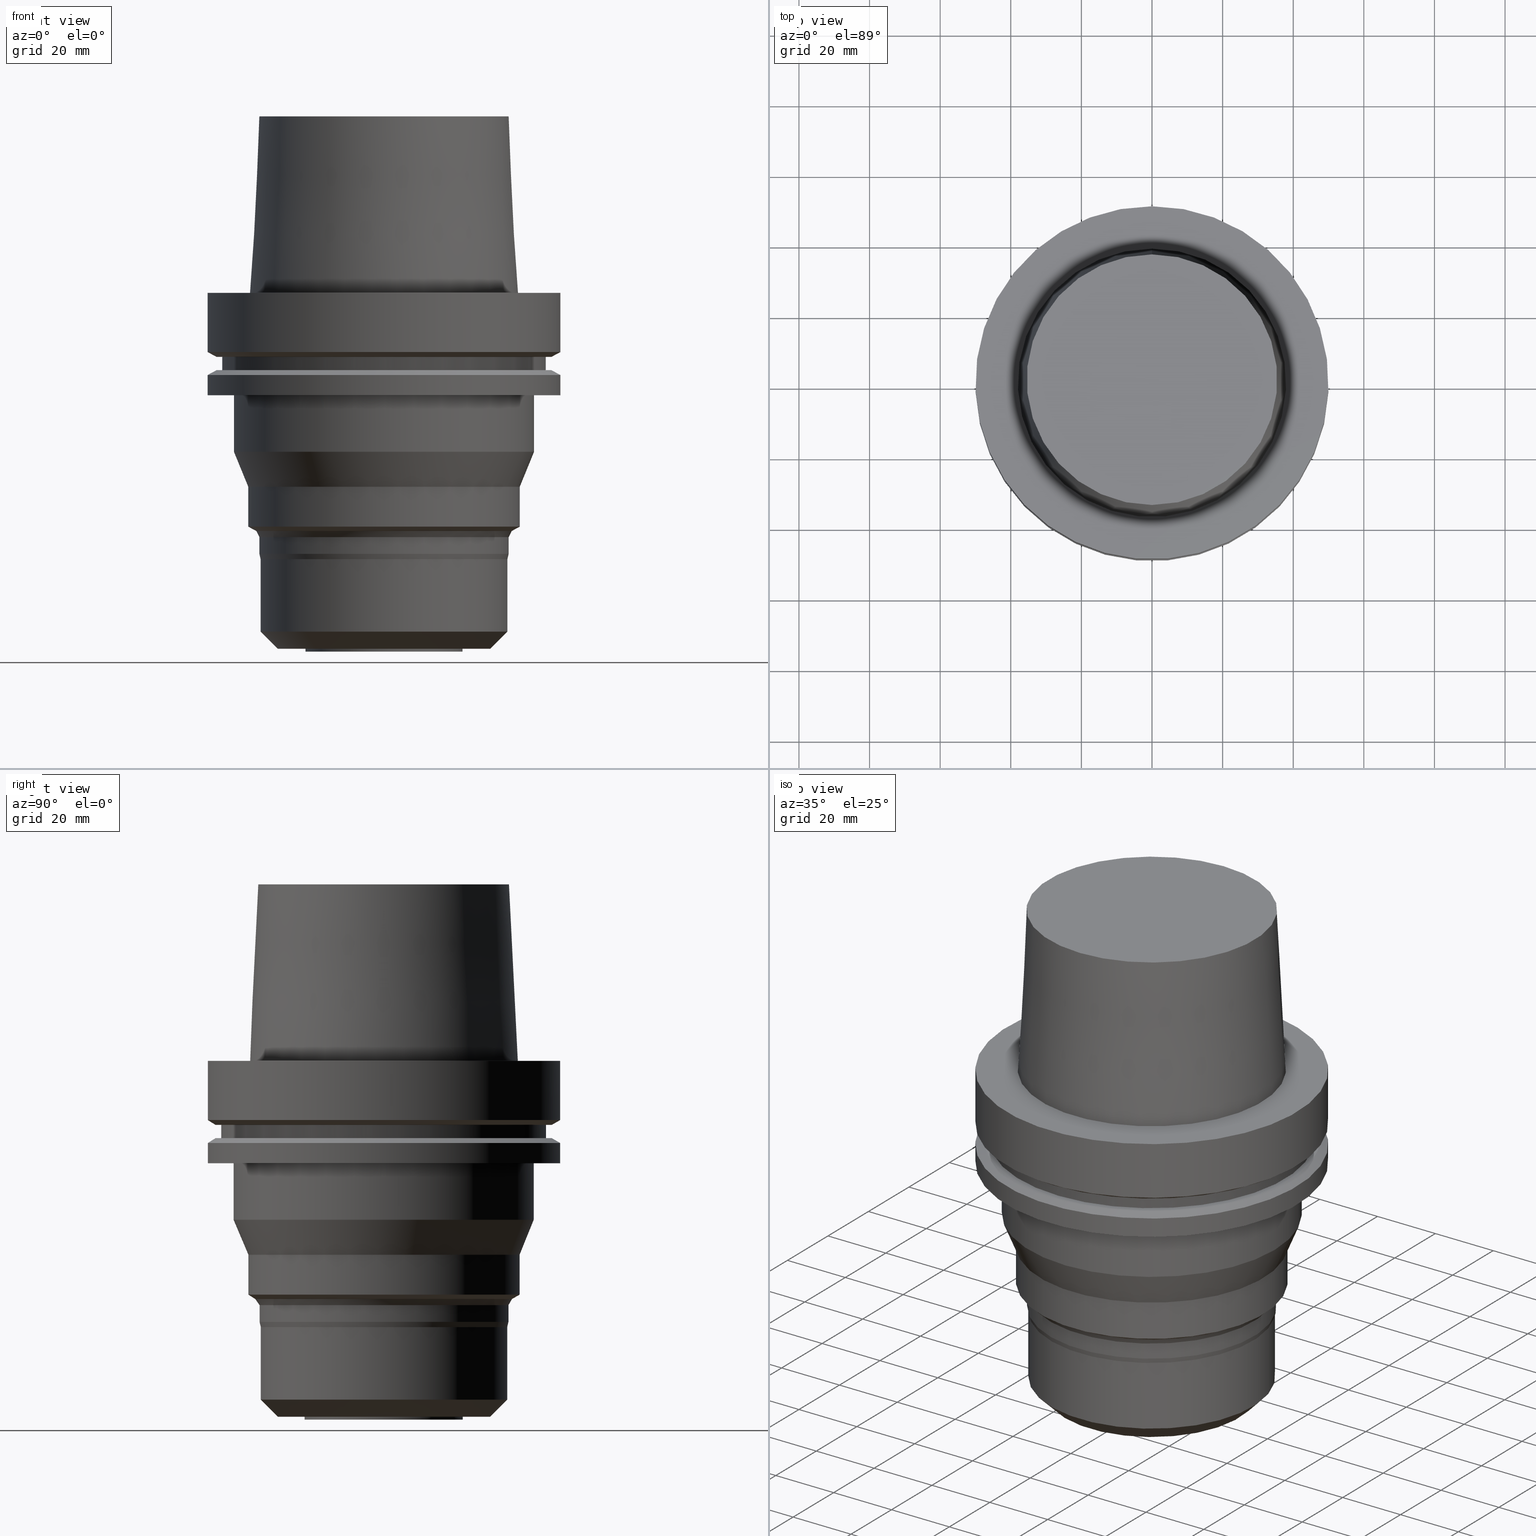
[diagram: canonical four-view strip — front | top / right | iso, engineering-drawing reading convention]
A machine part, canonical four-view strip (front | top / right | iso — engineering-drawing reading convention). The complete STEP part file that produces these views, byte-faithful:
ISO-10303-21;
HEADER;
FILE_DESCRIPTION((''),'1');
FILE_NAME('V:/90_\X2\53D65F9730C730FC30BF\X0\/00_\X2\6DE18DEF30C730FC30BF\X0\/ALL/HSK-BKUS\X2\52A05DE556F3\X0\_201801/HSK-A100-MEGADPG/HSK-A100-MEGA1.000DPG-4.stp','2018-02-01T05:06:17',(''),(''),'Spatial Interop R21 SP3','Kubotek KeyCreator 2011 V10.0.2 (22737)',' ');
FILE_SCHEMA(('automotive_design'));
ENDSEC;
DATA;
#1=MECHANICAL_DESIGN_GEOMETRIC_PRESENTATION_REPRESENTATION(' ',(#10,#11,#12,#13,#14,#15,#16,#17,#18,#19,#20,#21,#22,#23,#24,#25,#26,#27,#28,#29,#30,#31,#32,#33,#34,#35,#36,#37,#38,#39,#40,#41,#42,#43,#44,#45,#46,#47,#48,#49,#50,#51,#52,#53,#54,#55),#6);
#2=PRODUCT_DEFINITION_CONTEXT('',#56,'design');
#3=APPLICATION_PROTOCOL_DEFINITION('INTERNATIONAL STANDARD','automotive_design',1994,#56);
#4=PRODUCT_CATEGORY_RELATIONSHIP('NONE','NONE',#57,#58);
#5=SHAPE_DEFINITION_REPRESENTATION(#59,#60);
#6= (GEOMETRIC_REPRESENTATION_CONTEXT(3)GLOBAL_UNCERTAINTY_ASSIGNED_CONTEXT((#63))GLOBAL_UNIT_ASSIGNED_CONTEXT((#65,#66,#67))REPRESENTATION_CONTEXT('NONE','WORKSPACE'));
#10=STYLED_ITEM('',(#69),#70);
#11=STYLED_ITEM('',(#71,#72),#73);
#12=STYLED_ITEM('',(#74),#75);
#13=STYLED_ITEM('',(#76,#77),#78);
#14=STYLED_ITEM('',(#79),#80);
#15=STYLED_ITEM('',(#81),#82);
#16=STYLED_ITEM('',(#83),#84);
#17=STYLED_ITEM('',(#85),#86);
#18=STYLED_ITEM('',(#87,#88),#89);
#19=STYLED_ITEM('',(#90),#91);
#20=STYLED_ITEM('',(#92,#93),#94);
#21=STYLED_ITEM('',(#95),#96);
#22=STYLED_ITEM('',(#97,#98),#99);
#23=STYLED_ITEM('',(#100,#101),#102);
#24=STYLED_ITEM('',(#103,#104),#105);
#25=STYLED_ITEM('',(#106),#107);
#26=STYLED_ITEM('',(#108),#109);
#27=STYLED_ITEM('',(#110),#111);
#28=STYLED_ITEM('',(#112,#113),#114);
#29=STYLED_ITEM('',(#115,#116),#117);
#30=STYLED_ITEM('',(#118,#119),#120);
#31=STYLED_ITEM('',(#121),#122);
#32=STYLED_ITEM('',(#123),#124);
#33=STYLED_ITEM('',(#125),#126);
#34=STYLED_ITEM('',(#127,#128),#129);
#35=STYLED_ITEM('',(#130),#131);
#36=STYLED_ITEM('',(#132,#133),#134);
#37=STYLED_ITEM('',(#135,#136),#137);
#38=STYLED_ITEM('',(#138,#139),#140);
#39=STYLED_ITEM('',(#141,#142),#143);
#40=STYLED_ITEM('',(#144,#145),#146);
#41=STYLED_ITEM('',(#147),#148);
#42=STYLED_ITEM('',(#149,#150),#151);
#43=STYLED_ITEM('',(#152,#153),#154);
#44=STYLED_ITEM('',(#155,#156),#157);
#45=STYLED_ITEM('',(#158,#159),#160);
#46=STYLED_ITEM('',(#161,#162),#163);
#47=STYLED_ITEM('',(#164),#165);
#48=STYLED_ITEM('',(#166,#167),#168);
#49=STYLED_ITEM('',(#169,#170),#171);
#50=STYLED_ITEM('',(#172,#173),#174);
#51=STYLED_ITEM('',(#175),#176);
#52=STYLED_ITEM('',(#177),#178);
#53=STYLED_ITEM('',(#179),#180);
#54=STYLED_ITEM('',(#181),#182);
#55=STYLED_ITEM('',(#183),#184);
#56=APPLICATION_CONTEXT(' ');
#57=PRODUCT_CATEGORY('part','NONE');
#58=PRODUCT_RELATED_PRODUCT_CATEGORY('detail',' ',(#185));
#59=PRODUCT_DEFINITION_SHAPE('NONE','NONE',#186);
#60=ADVANCED_BREP_SHAPE_REPRESENTATION('Unnamed[1]',(#168,#187),#6);
#63=UNCERTAINTY_MEASURE_WITH_UNIT(LENGTH_MEASURE(1.0E-006),#65,'','');
#65= (CONVERSION_BASED_UNIT('MILLIMETRE',#190)LENGTH_UNIT()NAMED_UNIT(#193));
#66= (NAMED_UNIT(#195)PLANE_ANGLE_UNIT()SI_UNIT($,.RADIAN.));
#67= (NAMED_UNIT(#195)SOLID_ANGLE_UNIT()SI_UNIT($,.STERADIAN.));
#69=PRESENTATION_STYLE_ASSIGNMENT((#201));
#70=EDGE_CURVE('Unnamed[1]',#202,#202,#203,.T.);
#71=PRESENTATION_STYLE_ASSIGNMENT((#204));
#72=PRESENTATION_STYLE_ASSIGNMENT((#205));
#73=ADVANCED_FACE('Unnamed[1]',(#206,#207),#208,.T.);
#74=PRESENTATION_STYLE_ASSIGNMENT((#209));
#75=EDGE_CURVE('Unnamed[1]',#210,#210,#211,.T.);
#76=PRESENTATION_STYLE_ASSIGNMENT((#212));
#77=PRESENTATION_STYLE_ASSIGNMENT((#213));
#78=ADVANCED_FACE('Unnamed[1]',(#214,#215),#216,.T.);
#79=PRESENTATION_STYLE_ASSIGNMENT((#217));
#80=EDGE_CURVE('Unnamed[1]',#218,#218,#219,.T.);
#81=PRESENTATION_STYLE_ASSIGNMENT((#220));
#82=EDGE_CURVE('Unnamed[1]',#221,#221,#222,.T.);
#83=PRESENTATION_STYLE_ASSIGNMENT((#223));
#84=EDGE_CURVE('Unnamed[1]',#224,#224,#225,.T.);
#85=PRESENTATION_STYLE_ASSIGNMENT((#226));
#86=EDGE_CURVE('Unnamed[1]',#227,#227,#228,.T.);
#87=PRESENTATION_STYLE_ASSIGNMENT((#229));
#88=PRESENTATION_STYLE_ASSIGNMENT((#230));
#89=ADVANCED_FACE('Unnamed[1]',(#231,#232),#233,.T.);
#90=PRESENTATION_STYLE_ASSIGNMENT((#234));
#91=EDGE_CURVE('Unnamed[1]',#235,#235,#236,.T.);
#92=PRESENTATION_STYLE_ASSIGNMENT((#237));
#93=PRESENTATION_STYLE_ASSIGNMENT((#238));
#94=ADVANCED_FACE('Unnamed[1]',(#239),#240,.T.);
#95=PRESENTATION_STYLE_ASSIGNMENT((#241));
#96=EDGE_CURVE('Unnamed[1]',#242,#242,#243,.T.);
#97=PRESENTATION_STYLE_ASSIGNMENT((#244));
#98=PRESENTATION_STYLE_ASSIGNMENT((#245));
#99=ADVANCED_FACE('Unnamed[1]',(#246,#247),#248,.T.);
#100=PRESENTATION_STYLE_ASSIGNMENT((#249));
#101=PRESENTATION_STYLE_ASSIGNMENT((#250));
#102=ADVANCED_FACE('Unnamed[1]',(#251,#252),#253,.T.);
#103=PRESENTATION_STYLE_ASSIGNMENT((#254));
#104=PRESENTATION_STYLE_ASSIGNMENT((#255));
#105=ADVANCED_FACE('Unnamed[1]',(#256,#257),#258,.T.);
#106=PRESENTATION_STYLE_ASSIGNMENT((#259));
#107=EDGE_CURVE('Unnamed[1]',#260,#260,#261,.T.);
#108=PRESENTATION_STYLE_ASSIGNMENT((#262));
#109=EDGE_CURVE('Unnamed[1]',#263,#263,#264,.T.);
#110=PRESENTATION_STYLE_ASSIGNMENT((#265));
#111=EDGE_CURVE('Unnamed[1]',#266,#266,#267,.T.);
#112=PRESENTATION_STYLE_ASSIGNMENT((#268));
#113=PRESENTATION_STYLE_ASSIGNMENT((#269));
#114=ADVANCED_FACE('Unnamed[1]',(#270,#271),#272,.T.);
#115=PRESENTATION_STYLE_ASSIGNMENT((#273));
#116=PRESENTATION_STYLE_ASSIGNMENT((#274));
#117=ADVANCED_FACE('Unnamed[1]',(#275,#276),#277,.T.);
#118=PRESENTATION_STYLE_ASSIGNMENT((#278));
#119=PRESENTATION_STYLE_ASSIGNMENT((#279));
#120=ADVANCED_FACE('Unnamed[1]',(#280,#281),#282,.T.);
#121=PRESENTATION_STYLE_ASSIGNMENT((#283));
#122=EDGE_CURVE('Unnamed[1]',#284,#284,#285,.T.);
#123=PRESENTATION_STYLE_ASSIGNMENT((#286));
#124=EDGE_CURVE('Unnamed[1]',#287,#287,#288,.T.);
#125=PRESENTATION_STYLE_ASSIGNMENT((#289));
#126=EDGE_CURVE('Unnamed[1]',#290,#290,#291,.T.);
#127=PRESENTATION_STYLE_ASSIGNMENT((#292));
#128=PRESENTATION_STYLE_ASSIGNMENT((#293));
#129=ADVANCED_FACE('Unnamed[1]',(#294,#295),#296,.T.);
#130=PRESENTATION_STYLE_ASSIGNMENT((#297));
#131=EDGE_CURVE('Unnamed[1]',#298,#298,#299,.T.);
#132=PRESENTATION_STYLE_ASSIGNMENT((#300));
#133=PRESENTATION_STYLE_ASSIGNMENT((#301));
#134=ADVANCED_FACE('Unnamed[1]',(#302,#303),#304,.T.);
#135=PRESENTATION_STYLE_ASSIGNMENT((#305));
#136=PRESENTATION_STYLE_ASSIGNMENT((#306));
#137=ADVANCED_FACE('Unnamed[1]',(#307,#308),#309,.T.);
#138=PRESENTATION_STYLE_ASSIGNMENT((#310));
#139=PRESENTATION_STYLE_ASSIGNMENT((#311));
#140=ADVANCED_FACE('Unnamed[1]',(#312,#313),#314,.T.);
#141=PRESENTATION_STYLE_ASSIGNMENT((#315));
#142=PRESENTATION_STYLE_ASSIGNMENT((#316));
#143=ADVANCED_FACE('Unnamed[1]',(#317,#318),#319,.T.);
#144=PRESENTATION_STYLE_ASSIGNMENT((#320));
#145=PRESENTATION_STYLE_ASSIGNMENT((#321));
#146=ADVANCED_FACE('Unnamed[1]',(#322),#323,.T.);
#147=PRESENTATION_STYLE_ASSIGNMENT((#324));
#148=EDGE_CURVE('Unnamed[1]',#325,#325,#326,.T.);
#149=PRESENTATION_STYLE_ASSIGNMENT((#327));
#150=PRESENTATION_STYLE_ASSIGNMENT((#328));
#151=ADVANCED_FACE('Unnamed[1]',(#329,#330),#331,.T.);
#152=PRESENTATION_STYLE_ASSIGNMENT((#332));
#153=PRESENTATION_STYLE_ASSIGNMENT((#333));
#154=ADVANCED_FACE('Unnamed[1]',(#334,#335),#336,.T.);
#155=PRESENTATION_STYLE_ASSIGNMENT((#337));
#156=PRESENTATION_STYLE_ASSIGNMENT((#338));
#157=ADVANCED_FACE('Unnamed[1]',(#339,#340),#341,.T.);
#158=PRESENTATION_STYLE_ASSIGNMENT((#342));
#159=PRESENTATION_STYLE_ASSIGNMENT((#343));
#160=ADVANCED_FACE('Unnamed[1]',(#344,#345),#346,.T.);
#161=PRESENTATION_STYLE_ASSIGNMENT((#347));
#162=PRESENTATION_STYLE_ASSIGNMENT((#348));
#163=ADVANCED_FACE('Unnamed[1]',(#349,#350),#351,.T.);
#164=PRESENTATION_STYLE_ASSIGNMENT((#352));
#165=EDGE_CURVE('Unnamed[1]',#353,#353,#354,.T.);
#166=PRESENTATION_STYLE_ASSIGNMENT((#355));
#167=PRESENTATION_STYLE_ASSIGNMENT((#356));
#168=MANIFOLD_SOLID_BREP('Unnamed[1]',#357);
#169=PRESENTATION_STYLE_ASSIGNMENT((#358));
#170=PRESENTATION_STYLE_ASSIGNMENT((#359));
#171=ADVANCED_FACE('Unnamed[1]',(#360,#361),#362,.T.);
#172=PRESENTATION_STYLE_ASSIGNMENT((#363));
#173=PRESENTATION_STYLE_ASSIGNMENT((#364));
#174=ADVANCED_FACE('Unnamed[1]',(#365,#366),#367,.T.);
#175=PRESENTATION_STYLE_ASSIGNMENT((#368));
#176=EDGE_CURVE('Unnamed[1]',#369,#369,#370,.T.);
#177=PRESENTATION_STYLE_ASSIGNMENT((#371));
#178=EDGE_CURVE('Unnamed[1]',#372,#372,#373,.T.);
#179=PRESENTATION_STYLE_ASSIGNMENT((#374));
#180=EDGE_CURVE('Unnamed[1]',#375,#375,#376,.T.);
#181=PRESENTATION_STYLE_ASSIGNMENT((#377));
#182=EDGE_CURVE('Unnamed[1]',#378,#378,#379,.T.);
#183=PRESENTATION_STYLE_ASSIGNMENT((#380));
#184=EDGE_CURVE('Unnamed[1]',#381,#381,#382,.T.);
#185=PRODUCT('Unnamed[1]','Unnamed[1]','PART-Unnamed[1]-DESC',(#383));
#186=PRODUCT_DEFINITION('NONE','NONE',#384,#2);
#187=AXIS2_PLACEMENT_3D('',#385,#386,#387);
#190=LENGTH_MEASURE_WITH_UNIT(LENGTH_MEASURE(1.0),#388);
#193=DIMENSIONAL_EXPONENTS(1.0,0.0,0.0,0.0,0.0,0.0,0.0);
#195=DIMENSIONAL_EXPONENTS(0.0,0.0,0.0,0.0,0.0,0.0,0.0);
#201=CURVE_STYLE('',#389,POSITIVE_LENGTH_MEASURE(1000.0),#390);
#202=VERTEX_POINT('',#391);
#203=CIRCLE('',#392,35.3500001444791);
#204=SURFACE_STYLE_USAGE(.BOTH.,#393);
#205=CURVE_STYLE('',#394,POSITIVE_LENGTH_MEASURE(1000.0),#395);
#206=FACE_BOUND('',#396,.T.);
#207=FACE_BOUND('',#397,.T.);
#208=CONICAL_SURFACE('',#398,36.7499999999998,0.0499583957219389);
#209=CURVE_STYLE('',#399,POSITIVE_LENGTH_MEASURE(1000.0),#400);
#210=VERTEX_POINT('',#401);
#211=CIRCLE('',#402,42.4999999999989);
#212=SURFACE_STYLE_USAGE(.BOTH.,#403);
#213=CURVE_STYLE('',#404,POSITIVE_LENGTH_MEASURE(1000.0),#405);
#214=FACE_BOUND('',#406,.T.);
#215=FACE_BOUND('',#407,.T.);
#216=CONICAL_SURFACE('',#408,40.5000000463458,0.383984623955061);
#217=CURVE_STYLE('',#409,POSITIVE_LENGTH_MEASURE(1000.0),#410);
#218=VERTEX_POINT('',#411);
#219=CIRCLE('',#412,50.0);
#220=CURVE_STYLE('',#413,POSITIVE_LENGTH_MEASURE(1000.0),#414);
#221=VERTEX_POINT('',#415);
#222=CIRCLE('',#416,22.3990211432949);
#223=CURVE_STYLE('',#417,POSITIVE_LENGTH_MEASURE(1000.0),#418);
#224=VERTEX_POINT('',#419);
#225=CIRCLE('',#420,37.9999999999997);
#226=CURVE_STYLE('',#421,POSITIVE_LENGTH_MEASURE(1000.0),#422);
#227=VERTEX_POINT('',#423);
#228=CIRCLE('',#424,46.0000000000001);
#229=SURFACE_STYLE_USAGE(.BOTH.,#425);
#230=CURVE_STYLE('',#426,POSITIVE_LENGTH_MEASURE(1000.0),#427);
#231=FACE_BOUND('',#428,.T.);
#232=FACE_BOUND('',#429,.T.);
#233=CYLINDRICAL_SURFACE('',#430,35.0000001444792);
#234=CURVE_STYLE('',#431,POSITIVE_LENGTH_MEASURE(1000.0),#432);
#235=VERTEX_POINT('',#433);
#236=CIRCLE('',#434,50.0);
#237=SURFACE_STYLE_USAGE(.BOTH.,#435);
#238=CURVE_STYLE('',#436,POSITIVE_LENGTH_MEASURE(1000.0),#437);
#239=FACE_OUTER_BOUND('',#438,.T.);
#240=PLANE('',#439);
#241=CURVE_STYLE('',#440,POSITIVE_LENGTH_MEASURE(1000.0),#441);
#242=VERTEX_POINT('',#442);
#243=CIRCLE('',#443,30.1254031949116);
#244=SURFACE_STYLE_USAGE(.BOTH.,#444);
#245=CURVE_STYLE('',#445,POSITIVE_LENGTH_MEASURE(1000.0),#446);
#246=FACE_BOUND('',#447,.T.);
#247=FACE_BOUND('',#448,.T.);
#248=CYLINDRICAL_SURFACE('',#449,50.0000000000001);
#249=SURFACE_STYLE_USAGE(.BOTH.,#450);
#250=CURVE_STYLE('',#451,POSITIVE_LENGTH_MEASURE(1000.0),#452);
#251=FACE_BOUND('',#453,.T.);
#252=FACE_OUTER_BOUND('',#454,.T.);
#253=PLANE('',#455);
#254=SURFACE_STYLE_USAGE(.BOTH.,#456);
#255=CURVE_STYLE('',#457,POSITIVE_LENGTH_MEASURE(1000.0),#458);
#256=FACE_BOUND('',#459,.T.);
#257=FACE_BOUND('',#460,.T.);
#258=CYLINDRICAL_SURFACE('',#461,22.3990211432949);
#259=CURVE_STYLE('',#462,POSITIVE_LENGTH_MEASURE(1000.0),#463);
#260=VERTEX_POINT('',#464);
#261=CIRCLE('',#465,38.5000000926919);
#262=CURVE_STYLE('',#466,POSITIVE_LENGTH_MEASURE(1000.0),#467);
#263=VERTEX_POINT('',#468);
#264=CIRCLE('',#469,38.5000001503682);
#265=CURVE_STYLE('',#470,POSITIVE_LENGTH_MEASURE(1000.0),#471);
#266=VERTEX_POINT('',#472);
#267=CIRCLE('',#473,42.4999999999997);
#268=SURFACE_STYLE_USAGE(.BOTH.,#474);
#269=CURVE_STYLE('',#475,POSITIVE_LENGTH_MEASURE(1000.0),#476);
#270=FACE_BOUND('',#477,.T.);
#271=FACE_BOUND('',#478,.T.);
#272=CYLINDRICAL_SURFACE('',#479,46.0000000000001);
#273=SURFACE_STYLE_USAGE(.BOTH.,#480);
#274=CURVE_STYLE('',#481,POSITIVE_LENGTH_MEASURE(1000.0),#482);
#275=FACE_BOUND('',#483,.T.);
#276=FACE_BOUND('',#484,.T.);
#277=CONICAL_SURFACE('',#485,32.5627016696954,0.785398163397455);
#278=SURFACE_STYLE_USAGE(.BOTH.,#486);
#279=CURVE_STYLE('',#487,POSITIVE_LENGTH_MEASURE(1000.0),#488);
#280=FACE_BOUND('',#489,.T.);
#281=FACE_OUTER_BOUND('',#490,.T.);
#282=PLANE('',#491);
#283=CURVE_STYLE('',#492,POSITIVE_LENGTH_MEASURE(1000.0),#493);
#284=VERTEX_POINT('',#494);
#285=CIRCLE('',#495,46.0000000000001);
#286=CURVE_STYLE('',#496,POSITIVE_LENGTH_MEASURE(1000.0),#497);
#287=VERTEX_POINT('',#498);
#288=CIRCLE('',#499,35.3500001444791);
#289=CURVE_STYLE('',#500,POSITIVE_LENGTH_MEASURE(1000.0),#501);
#290=VERTEX_POINT('',#502);
#291=CIRCLE('',#503,22.3990211432949);
#292=SURFACE_STYLE_USAGE(.BOTH.,#504);
#293=CURVE_STYLE('',#505,POSITIVE_LENGTH_MEASURE(1000.0),#506);
#294=FACE_BOUND('',#507,.T.);
#295=FACE_BOUND('',#508,.T.);
#296=CONICAL_SURFACE('',#509,48.8112976320959,1.04719755119658);
#297=CURVE_STYLE('',#510,POSITIVE_LENGTH_MEASURE(1000.0),#511);
#298=VERTEX_POINT('',#512);
#299=CIRCLE('',#513,35.0000001444792);
#300=SURFACE_STYLE_USAGE(.BOTH.,#514);
#301=CURVE_STYLE('',#515,POSITIVE_LENGTH_MEASURE(1000.0),#516);
#302=FACE_BOUND('',#517,.T.);
#303=FACE_OUTER_BOUND('',#518,.T.);
#304=PLANE('',#519);
#305=SURFACE_STYLE_USAGE(.BOTH.,#520);
#306=CURVE_STYLE('',#521,POSITIVE_LENGTH_MEASURE(1000.0),#522);
#307=FACE_BOUND('',#523,.T.);
#308=FACE_BOUND('',#524,.T.);
#309=CYLINDRICAL_SURFACE('',#525,42.4999999999993);
#310=SURFACE_STYLE_USAGE(.BOTH.,#526);
#311=CURVE_STYLE('',#527,POSITIVE_LENGTH_MEASURE(1000.0),#528);
#312=FACE_OUTER_BOUND('',#529,.T.);
#313=FACE_BOUND('',#530,.T.);
#314=PLANE('',#531);
#315=SURFACE_STYLE_USAGE(.BOTH.,#532);
#316=CURVE_STYLE('',#533,POSITIVE_LENGTH_MEASURE(1000.0),#534);
#317=FACE_BOUND('',#535,.T.);
#318=FACE_BOUND('',#536,.T.);
#319=CONICAL_SURFACE('',#537,35.850000144479,0.523598775598254);
#320=SURFACE_STYLE_USAGE(.BOTH.,#538);
#321=CURVE_STYLE('',#539,POSITIVE_LENGTH_MEASURE(1000.0),#540);
#322=FACE_OUTER_BOUND('',#541,.T.);
#323=PLANE('',#542);
#324=CURVE_STYLE('',#543,POSITIVE_LENGTH_MEASURE(1000.0),#544);
#325=VERTEX_POINT('',#545);
#326=CIRCLE('',#546,47.6225952641917);
#327=SURFACE_STYLE_USAGE(.BOTH.,#547);
#328=CURVE_STYLE('',#548,POSITIVE_LENGTH_MEASURE(1000.0),#549);
#329=FACE_OUTER_BOUND('',#550,.T.);
#330=FACE_BOUND('',#551,.T.);
#331=PLANE('',#552);
#332=SURFACE_STYLE_USAGE(.BOTH.,#553);
#333=CURVE_STYLE('',#554,POSITIVE_LENGTH_MEASURE(1000.0),#555);
#334=FACE_BOUND('',#556,.T.);
#335=FACE_BOUND('',#557,.T.);
#336=CONICAL_SURFACE('',#558,37.4250001474235,1.04719755119651);
#337=SURFACE_STYLE_USAGE(.BOTH.,#559);
#338=CURVE_STYLE('',#560,POSITIVE_LENGTH_MEASURE(1000.0),#561);
#339=FACE_BOUND('',#562,.T.);
#340=FACE_BOUND('',#563,.T.);
#341=CONICAL_SURFACE('',#564,35.1750001444791,0.229231933276896);
#342=SURFACE_STYLE_USAGE(.BOTH.,#565);
#343=CURVE_STYLE('',#566,POSITIVE_LENGTH_MEASURE(1000.0),#567);
#344=FACE_BOUND('',#568,.T.);
#345=FACE_BOUND('',#569,.T.);
#346=CYLINDRICAL_SURFACE('',#570,38.50000012153);
#347=SURFACE_STYLE_USAGE(.BOTH.,#571);
#348=CURVE_STYLE('',#572,POSITIVE_LENGTH_MEASURE(1000.0),#573);
#349=FACE_BOUND('',#574,.T.);
#350=FACE_BOUND('',#575,.T.);
#351=CYLINDRICAL_SURFACE('',#576,35.3500001444791);
#352=CURVE_STYLE('',#577,POSITIVE_LENGTH_MEASURE(1000.0),#578);
#353=VERTEX_POINT('',#579);
#354=CIRCLE('',#580,35.0000001444792);
#355=SURFACE_STYLE_USAGE(.BOTH.,#581);
#356=CURVE_STYLE('',#582,POSITIVE_LENGTH_MEASURE(1000.0),#583);
#357=CLOSED_SHELL('',(#146,#73,#151,#99,#174,#102,#114,#140,#129,#171,#134,#137,#78,#160,#154,#143,#163,#157,#89,#117,#120,#105,#94));
#358=SURFACE_STYLE_USAGE(.BOTH.,#584);
#359=CURVE_STYLE('',#585,POSITIVE_LENGTH_MEASURE(1000.0),#586);
#360=FACE_BOUND('',#587,.T.);
#361=FACE_BOUND('',#588,.T.);
#362=CYLINDRICAL_SURFACE('',#589,50.0);
#363=SURFACE_STYLE_USAGE(.BOTH.,#590);
#364=CURVE_STYLE('',#591,POSITIVE_LENGTH_MEASURE(1000.0),#592);
#365=FACE_BOUND('',#593,.T.);
#366=FACE_BOUND('',#594,.T.);
#367=CONICAL_SURFACE('',#595,48.8112976320959,1.04719755119659);
#368=CURVE_STYLE('',#596,POSITIVE_LENGTH_MEASURE(1000.0),#597);
#369=VERTEX_POINT('',#598);
#370=CIRCLE('',#599,50.0);
#371=CURVE_STYLE('',#600,POSITIVE_LENGTH_MEASURE(1000.0),#601);
#372=VERTEX_POINT('',#602);
#373=CIRCLE('',#603,35.4999999999999);
#374=CURVE_STYLE('',#604,POSITIVE_LENGTH_MEASURE(1000.0),#605);
#375=VERTEX_POINT('',#606);
#376=CIRCLE('',#607,47.6225952641917);
#377=CURVE_STYLE('',#608,POSITIVE_LENGTH_MEASURE(1000.0),#609);
#378=VERTEX_POINT('',#610);
#379=CIRCLE('',#611,36.3500001444789);
#380=CURVE_STYLE('',#612,POSITIVE_LENGTH_MEASURE(1000.0),#613);
#381=VERTEX_POINT('',#614);
#382=CIRCLE('',#615,50.0000000000001);
#383=PRODUCT_CONTEXT('',#56,'mechanical');
#384=PRODUCT_DEFINITION_FORMATION_WITH_SPECIFIED_SOURCE(' ','NONE',#185,.NOT_KNOWN.);
#385=CARTESIAN_POINT('',(0.0,0.0,0.0));
#386=DIRECTION('',(0.0,0.0,1.0));
#387=DIRECTION('',(1.0,0.0,0.0));
#388= (NAMED_UNIT(#193)LENGTH_UNIT()SI_UNIT(.MILLI.,.METRE.));
#389=DRAUGHTING_PRE_DEFINED_CURVE_FONT('continuous');
#390=COLOUR_RGB('',0.0,1.0,0.0);
#391=CARTESIAN_POINT('',(4.23619741221846E-015,35.3500001444791,-69.1823538863266));
#392=AXIS2_PLACEMENT_3D('',#617,#618,#619);
#393=SURFACE_SIDE_STYLE('',(#620));
#394=DRAUGHTING_PRE_DEFINED_CURVE_FONT('continuous');
#395=COLOUR_RGB('',0.0,1.0,0.0);
#396=EDGE_LOOP('',(#621));
#397=EDGE_LOOP('',(#622));
#398=AXIS2_PLACEMENT_3D('',#623,#624,#625);
#399=DRAUGHTING_PRE_DEFINED_CURVE_FONT('continuous');
#400=COLOUR_RGB('',0.0,1.0,0.0);
#401=CARTESIAN_POINT('',(1.77573785876361E-015,42.4999999999989,-28.9999999999991));
#402=AXIS2_PLACEMENT_3D('',#626,#627,#628);
#403=SURFACE_SIDE_STYLE('',(#629));
#404=DRAUGHTING_PRE_DEFINED_CURVE_FONT('continuous');
#405=COLOUR_RGB('',0.0,1.0,0.0);
#406=EDGE_LOOP('',(#630));
#407=EDGE_LOOP('',(#631));
#408=AXIS2_PLACEMENT_3D('',#632,#633,#634);
#409=DRAUGHTING_PRE_DEFINED_CURVE_FONT('continuous');
#410=COLOUR_RGB('',0.0,1.0,0.0);
#411=CARTESIAN_POINT('',(1.42350465640822E-015,50.0,-23.2475952641907));
#412=AXIS2_PLACEMENT_3D('',#635,#636,#637);
#413=DRAUGHTING_PRE_DEFINED_CURVE_FONT('continuous');
#414=COLOUR_RGB('',0.0,1.0,0.0);
#415=CARTESIAN_POINT('',(6.17221986770265E-015,22.399021143295,-100.8));
#416=AXIS2_PLACEMENT_3D('',#638,#639,#640);
#417=DRAUGHTING_PRE_DEFINED_CURVE_FONT('continuous');
#418=COLOUR_RGB('',0.0,1.0,0.0);
#419=CARTESIAN_POINT('',(-4.68386162474972E-031,37.9999999999997,4.6536578367599E-015));
#420=AXIS2_PLACEMENT_3D('',#641,#642,#643);
#421=DRAUGHTING_PRE_DEFINED_CURVE_FONT('continuous');
#422=COLOUR_RGB('',0.0,1.0,0.0);
#423=CARTESIAN_POINT('',(1.33945743656734E-015,46.0,-21.8749999999988));
#424=AXIS2_PLACEMENT_3D('',#644,#645,#646);
#425=SURFACE_SIDE_STYLE('',(#647));
#426=DRAUGHTING_PRE_DEFINED_CURVE_FONT('continuous');
#427=COLOUR_RGB('',0.0,1.0,0.0);
#428=EDGE_LOOP('',(#648));
#429=EDGE_LOOP('',(#649));
#430=AXIS2_PLACEMENT_3D('',#650,#651,#652);
#431=DRAUGHTING_PRE_DEFINED_CURVE_FONT('continuous');
#432=COLOUR_RGB('',0.0,1.0,0.0);
#433=CARTESIAN_POINT('',(1.02578894188643E-015,50.0,-16.7524047358083));
#434=AXIS2_PLACEMENT_3D('',#653,#654,#655);
#435=SURFACE_SIDE_STYLE('',(#656));
#436=DRAUGHTING_PRE_DEFINED_CURVE_FONT('continuous');
#437=COLOUR_RGB('',0.0,1.0,0.0);
#438=EDGE_LOOP('',(#657));
#439=AXIS2_PLACEMENT_3D('',#658,#659,#660);
#440=DRAUGHTING_PRE_DEFINED_CURVE_FONT('continuous');
#441=COLOUR_RGB('',0.0,1.0,0.0);
#442=CARTESIAN_POINT('',(6.17221986770265E-015,30.1254031949117,-100.8));
#443=AXIS2_PLACEMENT_3D('',#661,#662,#663);
#444=SURFACE_SIDE_STYLE('',(#664));
#445=DRAUGHTING_PRE_DEFINED_CURVE_FONT('continuous');
#446=COLOUR_RGB('',0.0,1.0,0.0);
#447=EDGE_LOOP('',(#665));
#448=EDGE_LOOP('',(#666));
#449=AXIS2_PLACEMENT_3D('',#667,#668,#669);
#450=SURFACE_SIDE_STYLE('',(#670));
#451=DRAUGHTING_PRE_DEFINED_CURVE_FONT('continuous');
#452=COLOUR_RGB('',0.0,1.0,0.0);
#453=EDGE_LOOP('',(#671));
#454=EDGE_LOOP('',(#672));
#455=AXIS2_PLACEMENT_3D('',#673,#674,#675);
#456=SURFACE_SIDE_STYLE('',(#676));
#457=DRAUGHTING_PRE_DEFINED_CURVE_FONT('continuous');
#458=COLOUR_RGB('',0.0,1.0,0.0);
#459=EDGE_LOOP('',(#677));
#460=EDGE_LOOP('',(#678));
#461=AXIS2_PLACEMENT_3D('',#679,#680,#681);
#462=DRAUGHTING_PRE_DEFINED_CURVE_FONT('continuous');
#463=COLOUR_RGB('',0.0,1.0,0.0);
#464=CARTESIAN_POINT('',(3.36165544961199E-015,38.5000000926919,-54.899999770587));
#465=AXIS2_PLACEMENT_3D('',#682,#683,#684);
#466=DRAUGHTING_PRE_DEFINED_CURVE_FONT('continuous');
#467=COLOUR_RGB('',0.0,1.0,0.0);
#468=CARTESIAN_POINT('',(4.05413199602915E-015,38.5000001503682,-66.2089999965997));
#469=AXIS2_PLACEMENT_3D('',#685,#686,#687);
#470=DRAUGHTING_PRE_DEFINED_CURVE_FONT('continuous');
#471=COLOUR_RGB('',0.0,1.0,0.0);
#472=CARTESIAN_POINT('',(2.75545529808163E-015,42.4999999999997,-45.0000000000014));
#473=AXIS2_PLACEMENT_3D('',#688,#689,#690);
#474=SURFACE_SIDE_STYLE('',(#691));
#475=DRAUGHTING_PRE_DEFINED_CURVE_FONT('continuous');
#476=COLOUR_RGB('',0.0,1.0,0.0);
#477=EDGE_LOOP('',(#692));
#478=EDGE_LOOP('',(#693));
#479=AXIS2_PLACEMENT_3D('',#694,#695,#696);
#480=SURFACE_SIDE_STYLE('',(#697));
#481=DRAUGHTING_PRE_DEFINED_CURVE_FONT('continuous');
#482=COLOUR_RGB('',0.0,1.0,0.0);
#483=EDGE_LOOP('',(#698));
#484=EDGE_LOOP('',(#699));
#485=AXIS2_PLACEMENT_3D('',#700,#701,#702);
#486=SURFACE_SIDE_STYLE('',(#703));
#487=DRAUGHTING_PRE_DEFINED_CURVE_FONT('continuous');
#488=COLOUR_RGB('',0.0,1.0,0.0);
#489=EDGE_LOOP('',(#704));
#490=EDGE_LOOP('',(#705));
#491=AXIS2_PLACEMENT_3D('',#706,#707,#708);
#492=DRAUGHTING_PRE_DEFINED_CURVE_FONT('continuous');
#493=COLOUR_RGB('',0.0,1.0,0.0);
#494=CARTESIAN_POINT('',(1.10983616172727E-015,46.0,-18.1249999999997));
#495=AXIS2_PLACEMENT_3D('',#709,#710,#711);
#496=DRAUGHTING_PRE_DEFINED_CURVE_FONT('continuous');
#497=COLOUR_RGB('',0.0,1.0,0.0);
#498=CARTESIAN_POINT('',(4.52506992284948E-015,35.3500001444791,-73.9000000000002));
#499=AXIS2_PLACEMENT_3D('',#712,#713,#714);
#500=DRAUGHTING_PRE_DEFINED_CURVE_FONT('continuous');
#501=COLOUR_RGB('',0.0,1.0,0.0);
#502=CARTESIAN_POINT('',(6.22120573966855E-015,22.399021143295,-101.6));
#503=AXIS2_PLACEMENT_3D('',#715,#716,#717);
#504=SURFACE_SIDE_STYLE('',(#718));
#505=DRAUGHTING_PRE_DEFINED_CURVE_FONT('continuous');
#506=COLOUR_RGB('',0.0,1.0,0.0);
#507=EDGE_LOOP('',(#719));
#508=EDGE_LOOP('',(#720));
#509=AXIS2_PLACEMENT_3D('',#721,#722,#723);
#510=DRAUGHTING_PRE_DEFINED_CURVE_FONT('continuous');
#511=COLOUR_RGB('',0.0,1.0,0.0);
#512=CARTESIAN_POINT('',(4.61691843278555E-015,35.0000001444792,-75.4000000000005));
#513=AXIS2_PLACEMENT_3D('',#724,#725,#726);
#514=SURFACE_SIDE_STYLE('',(#727));
#515=DRAUGHTING_PRE_DEFINED_CURVE_FONT('continuous');
#516=COLOUR_RGB('',0.0,1.0,0.0);
#517=EDGE_LOOP('',(#728));
#518=EDGE_LOOP('',(#729));
#519=AXIS2_PLACEMENT_3D('',#730,#731,#732);
#520=SURFACE_SIDE_STYLE('',(#733));
#521=DRAUGHTING_PRE_DEFINED_CURVE_FONT('continuous');
#522=COLOUR_RGB('',0.0,1.0,0.0);
#523=EDGE_LOOP('',(#734));
#524=EDGE_LOOP('',(#735));
#525=AXIS2_PLACEMENT_3D('',#736,#737,#738);
#526=SURFACE_SIDE_STYLE('',(#739));
#527=DRAUGHTING_PRE_DEFINED_CURVE_FONT('continuous');
#528=COLOUR_RGB('',0.0,1.0,0.0);
#529=EDGE_LOOP('',(#740));
#530=EDGE_LOOP('',(#741));
#531=AXIS2_PLACEMENT_3D('',#742,#743,#744);
#532=SURFACE_SIDE_STYLE('',(#745));
#533=DRAUGHTING_PRE_DEFINED_CURVE_FONT('continuous');
#534=COLOUR_RGB('',0.0,1.0,0.0);
#535=EDGE_LOOP('',(#746));
#536=EDGE_LOOP('',(#747));
#537=AXIS2_PLACEMENT_3D('',#748,#749,#750);
#538=SURFACE_SIDE_STYLE('',(#751));
#539=DRAUGHTING_PRE_DEFINED_CURVE_FONT('continuous');
#540=COLOUR_RGB('',0.0,1.0,0.0);
#541=EDGE_LOOP('',(#752));
#542=AXIS2_PLACEMENT_3D('',#753,#754,#755);
#543=DRAUGHTING_PRE_DEFINED_CURVE_FONT('continuous');
#544=COLOUR_RGB('',0.0,1.0,0.0);
#545=CARTESIAN_POINT('',(1.10983616172729E-015,47.6225952641917,-18.125));
#546=AXIS2_PLACEMENT_3D('',#756,#757,#758);
#547=SURFACE_SIDE_STYLE('',(#759));
#548=DRAUGHTING_PRE_DEFINED_CURVE_FONT('continuous');
#549=COLOUR_RGB('',0.0,1.0,0.0);
#550=EDGE_LOOP('',(#760));
#551=EDGE_LOOP('',(#761));
#552=AXIS2_PLACEMENT_3D('',#762,#763,#764);
#553=SURFACE_SIDE_STYLE('',(#765));
#554=DRAUGHTING_PRE_DEFINED_CURVE_FONT('continuous');
#555=COLOUR_RGB('',0.0,1.0,0.0);
#556=EDGE_LOOP('',(#766));
#557=EDGE_LOOP('',(#767));
#558=AXIS2_PLACEMENT_3D('',#768,#769,#770);
#559=SURFACE_SIDE_STYLE('',(#771));
#560=DRAUGHTING_PRE_DEFINED_CURVE_FONT('continuous');
#561=COLOUR_RGB('',0.0,1.0,0.0);
#562=EDGE_LOOP('',(#772));
#563=EDGE_LOOP('',(#773));
#564=AXIS2_PLACEMENT_3D('',#774,#775,#776);
#565=SURFACE_SIDE_STYLE('',(#777));
#566=DRAUGHTING_PRE_DEFINED_CURVE_FONT('continuous');
#567=COLOUR_RGB('',0.0,1.0,0.0);
#568=EDGE_LOOP('',(#778));
#569=EDGE_LOOP('',(#779));
#570=AXIS2_PLACEMENT_3D('',#780,#781,#782);
#571=SURFACE_SIDE_STYLE('',(#783));
#572=DRAUGHTING_PRE_DEFINED_CURVE_FONT('continuous');
#573=COLOUR_RGB('',0.0,1.0,0.0);
#574=EDGE_LOOP('',(#784));
#575=EDGE_LOOP('',(#785));
#576=AXIS2_PLACEMENT_3D('',#786,#787,#788);
#577=DRAUGHTING_PRE_DEFINED_CURVE_FONT('continuous');
#578=COLOUR_RGB('',0.0,1.0,0.0);
#579=CARTESIAN_POINT('',(5.87373689013158E-015,35.0000001444792,-95.9254030504323));
#580=AXIS2_PLACEMENT_3D('',#789,#790,#791);
#581=SURFACE_SIDE_STYLE('',(#792));
#582=DRAUGHTING_PRE_DEFINED_CURVE_FONT('continuous');
#583=COLOUR_RGB('',0.0,1.0,0.0);
#584=SURFACE_SIDE_STYLE('',(#793));
#585=DRAUGHTING_PRE_DEFINED_CURVE_FONT('continuous');
#586=COLOUR_RGB('',0.0,1.0,0.0);
#587=EDGE_LOOP('',(#794));
#588=EDGE_LOOP('',(#795));
#589=AXIS2_PLACEMENT_3D('',#796,#797,#798);
#590=SURFACE_SIDE_STYLE('',(#799));
#591=DRAUGHTING_PRE_DEFINED_CURVE_FONT('continuous');
#592=COLOUR_RGB('',0.0,1.0,0.0);
#593=EDGE_LOOP('',(#800));
#594=EDGE_LOOP('',(#801));
#595=AXIS2_PLACEMENT_3D('',#802,#803,#804);
#596=DRAUGHTING_PRE_DEFINED_CURVE_FONT('continuous');
#597=COLOUR_RGB('',0.0,1.0,0.0);
#598=CARTESIAN_POINT('',(1.77573785876361E-015,50.0,-28.9999999999991));
#599=AXIS2_PLACEMENT_3D('',#805,#806,#807);
#600=DRAUGHTING_PRE_DEFINED_CURVE_FONT('continuous');
#601=COLOUR_RGB('',0.0,1.0,0.0);
#602=CARTESIAN_POINT('',(-3.06161699786838E-015,35.4999999999998,50.0));
#603=AXIS2_PLACEMENT_3D('',#808,#809,#810);
#604=DRAUGHTING_PRE_DEFINED_CURVE_FONT('continuous');
#605=COLOUR_RGB('',0.0,1.0,0.0);
#606=CARTESIAN_POINT('',(1.33945743656736E-015,47.6225952641917,-21.8749999999991));
#607=AXIS2_PLACEMENT_3D('',#811,#812,#813);
#608=DRAUGHTING_PRE_DEFINED_CURVE_FONT('continuous');
#609=COLOUR_RGB('',0.0,1.0,0.0);
#610=CARTESIAN_POINT('',(4.13013988834598E-015,36.3500001444789,-67.4503030787579));
#611=AXIS2_PLACEMENT_3D('',#814,#815,#816);
#612=DRAUGHTING_PRE_DEFINED_CURVE_FONT('continuous');
#613=COLOUR_RGB('',0.0,1.0,0.0);
#614=CARTESIAN_POINT('',(-6.16297582203916E-031,50.0,6.12323399573677E-015));
#615=AXIS2_PLACEMENT_3D('',#817,#818,#819);
#617=CARTESIAN_POINT('',(4.23619741221847E-015,2.57629779730822E-014,-69.1823538863266));
#618=DIRECTION('',(6.12323399573676E-017,8.53138753389863E-016,-1.0));
#619=DIRECTION('',(-5.7066834909142E-032,1.0,8.53138753389863E-016));
#620=SURFACE_STYLE_FILL_AREA(#820);
#621=ORIENTED_EDGE('',*,*,#84,.F.);
#622=ORIENTED_EDGE('',*,*,#178,.T.);
#623=CARTESIAN_POINT('',(-1.53080849893419E-015,-5.45876380128214E-014,25.0));
#624=DIRECTION('',(6.12323399573677E-017,8.53138753389863E-016,-1.0));
#625=DIRECTION('',(-5.7066834909142E-032,1.0,8.53138753389863E-016));
#626=CARTESIAN_POINT('',(1.77573785876361E-015,-8.51814532976959E-015,-28.9999999999991));
#627=DIRECTION('',(6.12323399573677E-017,8.53138753389863E-016,-1.0));
#628=DIRECTION('',(-5.7066834909142E-032,1.0,8.53138753389863E-016));
#629=SURFACE_STYLE_FILL_AREA(#821);
#630=ORIENTED_EDGE('',*,*,#107,.F.);
#631=ORIENTED_EDGE('',*,*,#111,.T.);
#632=CARTESIAN_POINT('',(3.05855537384681E-015,9.35511145588885E-015,-49.9499998852942));
#633=DIRECTION('',(-6.12323399573677E-017,-8.53138753389863E-016,1.0));
#634=DIRECTION('',(-5.7066834909142E-032,1.0,8.53138753389863E-016));
#635=CARTESIAN_POINT('',(1.42350465640822E-015,-1.34257447350711E-014,-23.2475952641908));
#636=DIRECTION('',(6.12323399573677E-017,8.53138753389863E-016,-1.0));
#637=DIRECTION('',(-5.7066834909142E-032,1.0,8.53138753389863E-016));
#638=CARTESIAN_POINT('',(6.17221986770265E-015,5.27372171636232E-014,-100.8));
#639=DIRECTION('',(6.12323399573677E-017,8.53138753389863E-016,-1.0));
#640=DIRECTION('',(-5.7066834909142E-032,1.0,8.53138753389863E-016));
#641=CARTESIAN_POINT('',(1.74032777401202E-030,-3.32591691780748E-014,-2.8421709430404E-014));
#642=DIRECTION('',(6.12323399573676E-017,8.53138753389863E-016,-1.0));
#643=DIRECTION('',(-5.7066834909142E-032,1.0,8.53138753389863E-016));
#644=CARTESIAN_POINT('',(1.33945743656735E-015,-1.45967589476726E-014,-21.8749999999988));
#645=DIRECTION('',(6.12323399573677E-017,8.53138753389863E-016,-1.0));
#646=DIRECTION('',(-5.7066834909142E-032,1.0,8.53138753389863E-016));
#647=SURFACE_STYLE_FILL_AREA(#822);
#648=ORIENTED_EDGE('',*,*,#165,.F.);
#649=ORIENTED_EDGE('',*,*,#131,.T.);
#650=CARTESIAN_POINT('',(5.24532766145857E-015,3.98230012131562E-014,-85.6627015252164));
#651=DIRECTION('',(6.12323399573677E-017,8.53138753389863E-016,-1.0));
#652=DIRECTION('',(-5.7066834909142E-032,1.0,8.53138753389863E-016));
#653=CARTESIAN_POINT('',(1.02578894188643E-015,-1.89670434854849E-014,-16.7524047358084));
#654=DIRECTION('',(6.12323399573677E-017,8.53138753389863E-016,-1.0));
#655=DIRECTION('',(-5.7066834909142E-032,1.0,8.53138753389863E-016));
#656=SURFACE_STYLE_FILL_AREA(#823);
#657=ORIENTED_EDGE('',*,*,#126,.T.);
#658=CARTESIAN_POINT('',(6.22120573966855E-015,11.1995105716475,-101.6));
#659=DIRECTION('',(6.12323399573677E-017,1.22464679914735E-016,-1.0));
#660=DIRECTION('',(-1.23259516440783E-032,1.0,1.22464679914735E-016));
#661=CARTESIAN_POINT('',(6.17221986770265E-015,5.27372171636232E-014,-100.8));
#662=DIRECTION('',(6.12323399573677E-017,8.53138753389863E-016,-1.0));
#663=DIRECTION('',(-5.7066834909142E-032,1.0,8.53138753389863E-016));
#664=SURFACE_STYLE_FILL_AREA(#824);
#665=ORIENTED_EDGE('',*,*,#91,.F.);
#666=ORIENTED_EDGE('',*,*,#184,.T.);
#667=CARTESIAN_POINT('',(5.12894470943219E-016,-2.61131063317798E-014,-8.37620236790421));
#668=DIRECTION('',(6.12323399573677E-017,8.53138753389863E-016,-1.0));
#669=DIRECTION('',(-5.7066834909142E-032,1.0,8.53138753389863E-016));
#670=SURFACE_STYLE_FILL_AREA(#825);
#671=ORIENTED_EDGE('',*,*,#122,.F.);
#672=ORIENTED_EDGE('',*,*,#148,.T.);
#673=CARTESIAN_POINT('',(1.10983616172728E-015,46.8112976320959,-18.1249999999998));
#674=DIRECTION('',(6.12323399573677E-017,-1.8379767585366E-013,-1.0));
#675=DIRECTION('',(1.12495346185146E-029,1.0,-1.8379767585366E-013));
#676=SURFACE_STYLE_FILL_AREA(#826);
#677=ORIENTED_EDGE('',*,*,#126,.F.);
#678=ORIENTED_EDGE('',*,*,#82,.T.);
#679=CARTESIAN_POINT('',(6.1967128036856E-015,5.30784726649792E-014,-101.2));
#680=DIRECTION('',(6.12323399573677E-017,8.53138753389863E-016,-1.0));
#681=DIRECTION('',(-5.7066834909142E-032,1.0,8.53138753389863E-016));
#682=CARTESIAN_POINT('',(3.36165544961199E-015,1.35781481873075E-014,-54.899999770587));
#683=DIRECTION('',(6.12323399573677E-017,8.53138753389863E-016,-1.0));
#684=DIRECTION('',(-5.7066834909142E-032,1.0,8.53138753389863E-016));
#685=CARTESIAN_POINT('',(4.05413199602915E-015,2.32262945422137E-014,-66.2089999965998));
#686=DIRECTION('',(6.12323399573677E-017,8.53138753389863E-016,-1.0));
#687=DIRECTION('',(-5.7066834909142E-032,1.0,8.53138753389863E-016));
#688=CARTESIAN_POINT('',(2.75545529808163E-015,5.13207472447017E-015,-45.0000000000014));
#689=DIRECTION('',(6.12323399573677E-017,8.53138753389863E-016,-1.0));
#690=DIRECTION('',(-5.7066834909142E-032,1.0,8.53138753389863E-016));
#691=SURFACE_STYLE_FILL_AREA(#827);
#692=ORIENTED_EDGE('',*,*,#86,.F.);
#693=ORIENTED_EDGE('',*,*,#122,.T.);
#694=CARTESIAN_POINT('',(1.22464679914731E-015,-1.61963941102782E-014,-19.9999999999993));
#695=DIRECTION('',(6.12323399573677E-017,8.53138753389863E-016,-1.0));
#696=DIRECTION('',(-5.7066834909142E-032,1.0,8.53138753389863E-016));
#697=SURFACE_STYLE_FILL_AREA(#828);
#698=ORIENTED_EDGE('',*,*,#96,.F.);
#699=ORIENTED_EDGE('',*,*,#165,.T.);
#700=CARTESIAN_POINT('',(6.02297837891712E-015,5.06578633812072E-014,-98.3627015252161));
#701=DIRECTION('',(-6.12323399573677E-017,-8.53138753389863E-016,1.0));
#702=DIRECTION('',(-5.7066834909142E-032,1.0,8.53138753389863E-016));
#703=SURFACE_STYLE_FILL_AREA(#829);
#704=ORIENTED_EDGE('',*,*,#82,.F.);
#705=ORIENTED_EDGE('',*,*,#96,.T.);
#706=CARTESIAN_POINT('',(6.17221986770265E-015,26.2622121691033,-100.8));
#707=DIRECTION('',(6.12323399573677E-017,1.22464679914735E-016,-1.0));
#708=DIRECTION('',(-1.23259516440783E-032,1.0,1.22464679914735E-016));
#709=CARTESIAN_POINT('',(1.10983616172727E-015,-1.77960292728838E-014,-18.1249999999997));
#710=DIRECTION('',(6.12323399573677E-017,8.53138753389863E-016,-1.0));
#711=DIRECTION('',(-5.7066834909142E-032,1.0,8.53138753389863E-016));
#712=CARTESIAN_POINT('',(4.52506992284948E-015,2.97877846974362E-014,-73.9000000000002));
#713=DIRECTION('',(6.12323399573677E-017,8.53138753389863E-016,-1.0));
#714=DIRECTION('',(-5.7066834909142E-032,1.0,8.53138753389863E-016));
#715=CARTESIAN_POINT('',(6.22120573966855E-015,5.34197281663352E-014,-101.6));
#716=DIRECTION('',(6.12323399573677E-017,8.53138753389863E-016,-1.0));
#717=DIRECTION('',(-5.7066834909142E-032,1.0,8.53138753389863E-016));
#718=SURFACE_STYLE_FILL_AREA(#830);
#719=ORIENTED_EDGE('',*,*,#80,.F.);
#720=ORIENTED_EDGE('',*,*,#180,.T.);
#721=CARTESIAN_POINT('',(1.38148104648779E-015,-1.40112518413717E-014,-22.561297632095));
#722=DIRECTION('',(6.12323399573677E-017,8.53138753389863E-016,-1.0));
#723=DIRECTION('',(-5.7066834909142E-032,1.0,8.53138753389863E-016));
#724=CARTESIAN_POINT('',(4.61691843278555E-015,3.10674928275212E-014,-75.4000000000005));
#725=DIRECTION('',(6.12323399573677E-017,8.53138753389863E-016,-1.0));
#726=DIRECTION('',(-5.7066834909142E-032,1.0,8.53138753389863E-016));
#727=SURFACE_STYLE_FILL_AREA(#831);
#728=ORIENTED_EDGE('',*,*,#75,.F.);
#729=ORIENTED_EDGE('',*,*,#176,.T.);
#730=CARTESIAN_POINT('',(1.77573785876361E-015,46.2499999999994,-28.9999999999991));
#731=DIRECTION('',(6.12323399573677E-017,1.22464679914735E-016,-1.0));
#732=DIRECTION('',(-1.23259516440783E-032,1.0,1.22464679914735E-016));
#733=SURFACE_STYLE_FILL_AREA(#832);
#734=ORIENTED_EDGE('',*,*,#111,.F.);
#735=ORIENTED_EDGE('',*,*,#75,.T.);
#736=CARTESIAN_POINT('',(2.26559657842262E-015,-1.69303530264971E-015,-37.0000000000003));
#737=DIRECTION('',(6.12323399573677E-017,8.53138753389863E-016,-1.0));
#738=DIRECTION('',(-5.7066834909142E-032,1.0,8.53138753389863E-016));
#739=SURFACE_STYLE_FILL_AREA(#833);
#740=ORIENTED_EDGE('',*,*,#180,.F.);
#741=ORIENTED_EDGE('',*,*,#86,.T.);
#742=CARTESIAN_POINT('',(1.33945743656735E-015,46.8112976320959,-21.8749999999989));
#743=DIRECTION('',(-6.12323399573677E-017,1.72850048440947E-013,1.0));
#744=DIRECTION('',(-1.05791857750528E-029,-1.0,1.72850048440947E-013));
#745=SURFACE_STYLE_FILL_AREA(#834);
#746=ORIENTED_EDGE('',*,*,#70,.F.);
#747=ORIENTED_EDGE('',*,*,#182,.T.);
#748=CARTESIAN_POINT('',(4.18316865028223E-015,2.50241381396936E-014,-68.3163284825422));
#749=DIRECTION('',(-6.12323399573677E-017,-8.53138753389863E-016,1.0));
#750=DIRECTION('',(-5.7066834909142E-032,1.0,8.53138753389863E-016));
#751=SURFACE_STYLE_FILL_AREA(#835);
#752=ORIENTED_EDGE('',*,*,#178,.F.);
#753=CARTESIAN_POINT('',(-3.06161699786838E-015,17.7499999999999,50.0));
#754=DIRECTION('',(-6.12323399573677E-017,-1.22464679914735E-016,1.0));
#755=DIRECTION('',(1.23259516440783E-032,-1.0,-1.22464679914735E-016));
#756=CARTESIAN_POINT('',(1.10983616172729E-015,-1.77960292728836E-014,-18.125));
#757=DIRECTION('',(6.12323399573677E-017,8.53138753389863E-016,-1.0));
#758=DIRECTION('',(-5.7066834909142E-032,1.0,8.53138753389863E-016));
#759=SURFACE_STYLE_FILL_AREA(#836);
#760=ORIENTED_EDGE('',*,*,#184,.F.);
#761=ORIENTED_EDGE('',*,*,#84,.T.);
#762=CARTESIAN_POINT('',(-5.42341872339444E-031,43.9999999999998,5.38844591624833E-015));
#763=DIRECTION('',(-6.12323399573677E-017,-1.22464679914735E-016,1.0));
#764=DIRECTION('',(1.23259516440783E-032,-1.0,-1.22464679914735E-016));
#765=SURFACE_STYLE_FILL_AREA(#837);
#766=ORIENTED_EDGE('',*,*,#182,.F.);
#767=ORIENTED_EDGE('',*,*,#109,.T.);
#768=CARTESIAN_POINT('',(4.09213594218757E-015,2.37557964242594E-014,-66.8296515376788));
#769=DIRECTION('',(-6.12323399573677E-017,-8.53138753389863E-016,1.0));
#770=DIRECTION('',(-5.7066834909142E-032,1.0,8.53138753389863E-016));
#771=SURFACE_STYLE_FILL_AREA(#838);
#772=ORIENTED_EDGE('',*,*,#131,.F.);
#773=ORIENTED_EDGE('',*,*,#124,.T.);
#774=CARTESIAN_POINT('',(4.57099417781752E-015,3.04276387624787E-014,-74.6500000000004));
#775=DIRECTION('',(-6.12323399573677E-017,-8.53138753389863E-016,1.0));
#776=DIRECTION('',(-5.7066834909142E-032,1.0,8.53138753389863E-016));
#777=SURFACE_STYLE_FILL_AREA(#839);
#778=ORIENTED_EDGE('',*,*,#109,.F.);
#779=ORIENTED_EDGE('',*,*,#107,.T.);
#780=CARTESIAN_POINT('',(3.70789372282057E-015,1.84022213647606E-014,-60.5544998835934));
#781=DIRECTION('',(6.12323399573677E-017,8.53138753389863E-016,-1.0));
#782=DIRECTION('',(-5.7066834909142E-032,1.0,8.53138753389863E-016));
#783=SURFACE_STYLE_FILL_AREA(#840);
#784=ORIENTED_EDGE('',*,*,#124,.F.);
#785=ORIENTED_EDGE('',*,*,#70,.T.);
#786=CARTESIAN_POINT('',(4.38063366753398E-015,2.77753813352592E-014,-71.5411769431634));
#787=DIRECTION('',(6.12323399573677E-017,8.53138753389863E-016,-1.0));
#788=DIRECTION('',(-5.7066834909142E-032,1.0,8.53138753389863E-016));
#789=CARTESIAN_POINT('',(5.87373689013159E-015,4.85785095987912E-014,-95.9254030504324));
#790=DIRECTION('',(6.12323399573677E-017,8.53138753389863E-016,-1.0));
#791=DIRECTION('',(-5.7066834909142E-032,1.0,8.53138753389863E-016));
#792=SURFACE_STYLE_FILL_AREA(#841);
#793=SURFACE_STYLE_FILL_AREA(#842);
#794=ORIENTED_EDGE('',*,*,#176,.F.);
#795=ORIENTED_EDGE('',*,*,#80,.T.);
#796=CARTESIAN_POINT('',(1.59962125758592E-015,-1.09719450324203E-014,-26.123797632095));
#797=DIRECTION('',(6.12323399573677E-017,8.53138753389863E-016,-1.0));
#798=DIRECTION('',(-5.7066834909142E-032,1.0,8.53138753389863E-016));
#799=SURFACE_STYLE_FILL_AREA(#843);
#800=ORIENTED_EDGE('',*,*,#148,.F.);
#801=ORIENTED_EDGE('',*,*,#91,.T.);
#802=CARTESIAN_POINT('',(1.06781255180686E-015,-1.83815363791842E-014,-17.4387023679042));
#803=DIRECTION('',(-6.12323399573677E-017,-8.53138753389863E-016,1.0));
#804=DIRECTION('',(-5.7066834909142E-032,1.0,8.53138753389863E-016));
#805=CARTESIAN_POINT('',(1.77573785876361E-015,-8.51814532976957E-015,-28.9999999999991));
#806=DIRECTION('',(6.12323399573677E-017,8.53138753389863E-016,-1.0));
#807=DIRECTION('',(-5.7066834909142E-032,1.0,8.53138753389863E-016));
#808=CARTESIAN_POINT('',(-3.06161699786838E-015,-7.5916106847568E-014,50.0));
#809=DIRECTION('',(6.12323399573677E-017,8.53138753389863E-016,-1.0));
#810=DIRECTION('',(-5.7066834909142E-032,1.0,8.53138753389863E-016));
#811=CARTESIAN_POINT('',(1.33945743656736E-015,-1.45967589476724E-014,-21.8749999999991));
#812=DIRECTION('',(6.12323399573677E-017,8.53138753389863E-016,-1.0));
#813=DIRECTION('',(-5.7066834909142E-032,1.0,8.53138753389863E-016));
#814=CARTESIAN_POINT('',(4.13013988834599E-015,2.42852983063051E-014,-67.4503030787579));
#815=DIRECTION('',(6.12323399573677E-017,8.53138753389863E-016,-1.0));
#816=DIRECTION('',(-5.7066834909142E-032,1.0,8.53138753389863E-016));
#817=CARTESIAN_POINT('',(2.61049166101803E-030,-3.32591691780748E-014,-4.2632564145606E-014));
#818=DIRECTION('',(6.12323399573677E-017,8.53138753389863E-016,-1.0));
#819=DIRECTION('',(-5.7066834909142E-032,1.0,8.53138753389863E-016));
#820=FILL_AREA_STYLE('',(#844));
#821=FILL_AREA_STYLE('',(#845));
#822=FILL_AREA_STYLE('',(#846));
#823=FILL_AREA_STYLE('',(#847));
#824=FILL_AREA_STYLE('',(#848));
#825=FILL_AREA_STYLE('',(#849));
#826=FILL_AREA_STYLE('',(#850));
#827=FILL_AREA_STYLE('',(#851));
#828=FILL_AREA_STYLE('',(#852));
#829=FILL_AREA_STYLE('',(#853));
#830=FILL_AREA_STYLE('',(#854));
#831=FILL_AREA_STYLE('',(#855));
#832=FILL_AREA_STYLE('',(#856));
#833=FILL_AREA_STYLE('',(#857));
#834=FILL_AREA_STYLE('',(#858));
#835=FILL_AREA_STYLE('',(#859));
#836=FILL_AREA_STYLE('',(#860));
#837=FILL_AREA_STYLE('',(#861));
#838=FILL_AREA_STYLE('',(#862));
#839=FILL_AREA_STYLE('',(#863));
#840=FILL_AREA_STYLE('',(#864));
#841=FILL_AREA_STYLE('',(#865));
#842=FILL_AREA_STYLE('',(#866));
#843=FILL_AREA_STYLE('',(#867));
#844=FILL_AREA_STYLE_COLOUR('',#868);
#845=FILL_AREA_STYLE_COLOUR('',#869);
#846=FILL_AREA_STYLE_COLOUR('',#870);
#847=FILL_AREA_STYLE_COLOUR('',#871);
#848=FILL_AREA_STYLE_COLOUR('',#872);
#849=FILL_AREA_STYLE_COLOUR('',#873);
#850=FILL_AREA_STYLE_COLOUR('',#874);
#851=FILL_AREA_STYLE_COLOUR('',#875);
#852=FILL_AREA_STYLE_COLOUR('',#876);
#853=FILL_AREA_STYLE_COLOUR('',#877);
#854=FILL_AREA_STYLE_COLOUR('',#878);
#855=FILL_AREA_STYLE_COLOUR('',#879);
#856=FILL_AREA_STYLE_COLOUR('',#880);
#857=FILL_AREA_STYLE_COLOUR('',#881);
#858=FILL_AREA_STYLE_COLOUR('',#882);
#859=FILL_AREA_STYLE_COLOUR('',#883);
#860=FILL_AREA_STYLE_COLOUR('',#884);
#861=FILL_AREA_STYLE_COLOUR('',#885);
#862=FILL_AREA_STYLE_COLOUR('',#886);
#863=FILL_AREA_STYLE_COLOUR('',#887);
#864=FILL_AREA_STYLE_COLOUR('',#888);
#865=FILL_AREA_STYLE_COLOUR('',#889);
#866=FILL_AREA_STYLE_COLOUR('',#890);
#867=FILL_AREA_STYLE_COLOUR('',#891);
#868=COLOUR_RGB('',0.0,1.0,0.0);
#869=COLOUR_RGB('',0.0,1.0,0.0);
#870=COLOUR_RGB('',0.0,1.0,0.0);
#871=COLOUR_RGB('',0.0,1.0,0.0);
#872=COLOUR_RGB('',0.0,1.0,0.0);
#873=COLOUR_RGB('',0.0,1.0,0.0);
#874=COLOUR_RGB('',0.0,1.0,0.0);
#875=COLOUR_RGB('',0.0,1.0,0.0);
#876=COLOUR_RGB('',0.0,1.0,0.0);
#877=COLOUR_RGB('',0.0,1.0,0.0);
#878=COLOUR_RGB('',0.0,1.0,0.0);
#879=COLOUR_RGB('',0.0,1.0,0.0);
#880=COLOUR_RGB('',0.0,1.0,0.0);
#881=COLOUR_RGB('',0.0,1.0,0.0);
#882=COLOUR_RGB('',0.0,1.0,0.0);
#883=COLOUR_RGB('',0.0,1.0,0.0);
#884=COLOUR_RGB('',0.0,1.0,0.0);
#885=COLOUR_RGB('',0.0,1.0,0.0);
#886=COLOUR_RGB('',0.0,1.0,0.0);
#887=COLOUR_RGB('',0.0,1.0,0.0);
#888=COLOUR_RGB('',0.0,1.0,0.0);
#889=COLOUR_RGB('',0.0,1.0,0.0);
#890=COLOUR_RGB('',0.0,1.0,0.0);
#891=COLOUR_RGB('',0.0,1.0,0.0);
ENDSEC;
END-ISO-10303-21;
